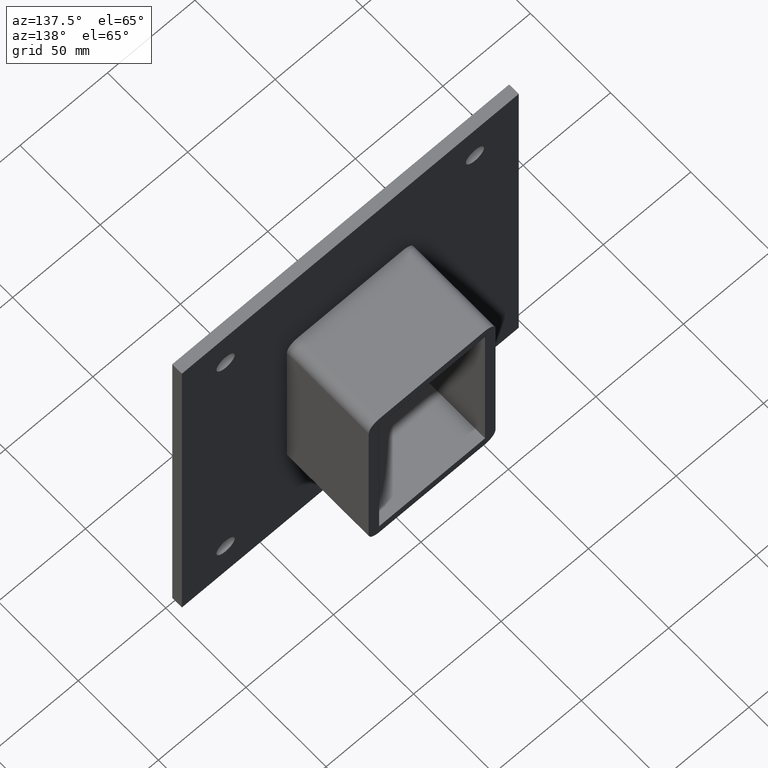
[diagram: clean part render]
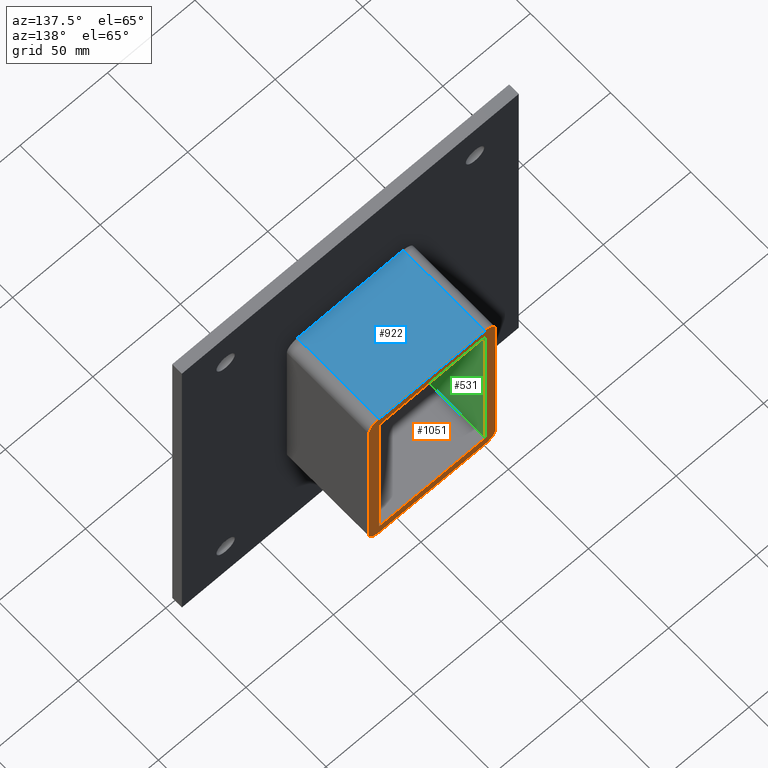
[diagram: same view with three faces highlighted in distinct colors, each labeled with its STEP entity id]
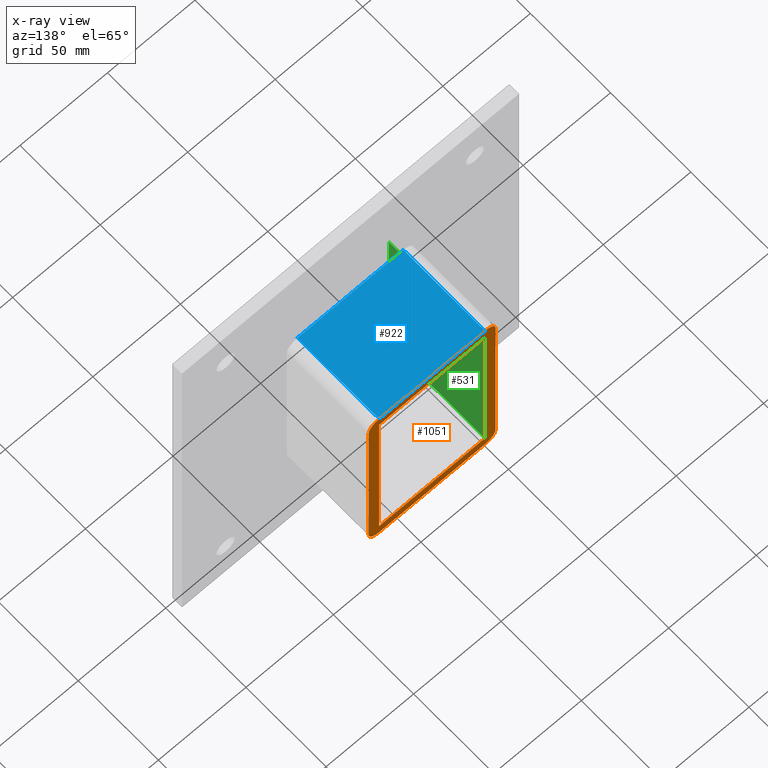
[diagram: x-ray of the same camera — body ghosted, the three highlighted faces saturated]
A machine part, auxiliary view with three faces highlighted in distinct colors.
The next image is the same camera in x-ray (body ghosted, the three faces saturated) — at least one of them is partly hidden behind the body in this view.
Their STEP definitions:

[orange] entity #1051 — the highlighted planar face has unit normal (0, 1, 0).
#499=CARTESIAN_POINT('',(-30.249999999999986,57.0,-50.500000000000043));
#500=VERTEX_POINT('',#499);
#507=CARTESIAN_POINT('',(-30.249999999999986,57.0,50.500000000000007));
#508=VERTEX_POINT('',#507);
#509=CARTESIAN_POINT('',(-30.249999999999986,57.0,50.500000000000007));
#510=DIRECTION('',(0.0,0.0,-1.0));
#511=VECTOR('',#510,101.00000000000006);
#512=LINE('',#509,#511);
#513=EDGE_CURVE('',#508,#500,#512,.T.);
#570=CARTESIAN_POINT('',(30.250000000000004,57.0,-56.500000000000057));
#571=VERTEX_POINT('',#570);
#578=CARTESIAN_POINT('',(36.25,57.0,-50.500000000000057));
#579=VERTEX_POINT('',#578);
#580=CARTESIAN_POINT('',(30.250000000000004,57.0,-50.500000000000057));
#581=DIRECTION('',(0.0,-1.0,0.0));
#582=DIRECTION('',(0.707106781186547,0.0,-0.707106781186547));
#583=AXIS2_PLACEMENT_3D('',#580,#581,#582);
#584=CIRCLE('',#583,6.0);
#585=EDGE_CURVE('',#571,#579,#584,.T.);
#626=CARTESIAN_POINT('',(-30.250000000000004,57.0,-56.500000000000057));
#627=VERTEX_POINT('',#626);
#634=CARTESIAN_POINT('',(30.250000000000004,57.0,-56.500000000000057));
#635=DIRECTION('',(-1.0,0.0,0.0));
#636=VECTOR('',#635,60.5);
#637=LINE('',#634,#636);
#638=EDGE_CURVE('',#571,#627,#637,.T.);
#699=CARTESIAN_POINT('',(-36.25,57.0,-50.500000000000057));
#700=VERTEX_POINT('',#699);
#707=CARTESIAN_POINT('',(-30.250000000000004,57.0,-50.500000000000057));
#708=DIRECTION('',(0.0,-1.0,0.0));
#709=DIRECTION('',(-0.707106781186547,0.0,-0.707106781186547));
#710=AXIS2_PLACEMENT_3D('',#707,#708,#709);
#711=CIRCLE('',#710,6.0);
#712=EDGE_CURVE('',#700,#627,#711,.T.);
#773=CARTESIAN_POINT('',(-36.25,57.0,50.500000000000057));
#774=VERTEX_POINT('',#773);
#781=CARTESIAN_POINT('',(-36.25,57.0,-50.500000000000057));
#782=DIRECTION('',(0.0,0.0,1.0));
#783=VECTOR('',#782,101.00000000000011);
#784=LINE('',#781,#783);
#785=EDGE_CURVE('',#700,#774,#784,.T.);
#880=CARTESIAN_POINT('',(-30.250000000000004,57.0,56.500000000000057));
#881=VERTEX_POINT('',#880);
#888=CARTESIAN_POINT('',(-30.250000000000004,57.0,50.500000000000057));
#889=DIRECTION('',(0.0,-1.0,0.0));
#890=DIRECTION('',(-0.707106781186547,0.0,0.707106781186547));
#891=AXIS2_PLACEMENT_3D('',#888,#889,#890);
#892=CIRCLE('',#891,6.0);
#893=EDGE_CURVE('',#881,#774,#892,.T.);
#905=CARTESIAN_POINT('',(30.250000000000004,57.0,56.500000000000057));
#906=VERTEX_POINT('',#905);
#913=CARTESIAN_POINT('',(-30.250000000000004,57.0,56.500000000000057));
#914=DIRECTION('',(1.0,0.0,0.0));
#915=VECTOR('',#914,60.5);
#916=LINE('',#913,#915);
#917=EDGE_CURVE('',#881,#906,#916,.T.);
#929=CARTESIAN_POINT('',(36.25,57.0,50.500000000000057));
#930=VERTEX_POINT('',#929);
#937=CARTESIAN_POINT('',(30.250000000000004,57.0,50.500000000000057));
#938=DIRECTION('',(0.0,-1.0,0.0));
#939=DIRECTION('',(0.707106781186547,0.0,0.707106781186547));
#940=AXIS2_PLACEMENT_3D('',#937,#938,#939);
#941=CIRCLE('',#940,6.0);
#942=EDGE_CURVE('',#930,#906,#941,.T.);
#955=CARTESIAN_POINT('',(36.25,57.0,50.500000000000057));
#956=DIRECTION('',(0.0,0.0,-1.0));
#957=VECTOR('',#956,101.00000000000011);
#958=LINE('',#955,#957);
#959=EDGE_CURVE('',#930,#579,#958,.T.);
#970=CARTESIAN_POINT('',(30.249999999999986,57.0,-50.500000000000043));
#971=VERTEX_POINT('',#970);
#979=CARTESIAN_POINT('',(30.249999999999986,57.0,50.500000000000007));
#980=VERTEX_POINT('',#979);
#987=CARTESIAN_POINT('',(30.249999999999986,57.0,-50.500000000000043));
#988=DIRECTION('',(0.0,0.0,1.0));
#989=VECTOR('',#988,101.00000000000006);
#990=LINE('',#987,#989);
#991=EDGE_CURVE('',#971,#980,#990,.T.);
#1002=CARTESIAN_POINT('',(30.249999999999986,57.0,50.499999999999972));
#1003=DIRECTION('',(-1.0,0.0,0.0));
#1004=VECTOR('',#1003,60.499999999999972);
#1005=LINE('',#1002,#1004);
#1006=EDGE_CURVE('',#980,#508,#1005,.T.);
#1021=CARTESIAN_POINT('',(-30.249999999999986,57.0,-50.500000000000043));
#1022=DIRECTION('',(1.0,0.0,0.0));
#1023=VECTOR('',#1022,60.499999999999972);
#1024=LINE('',#1021,#1023);
#1025=EDGE_CURVE('',#500,#971,#1024,.T.);
#1030=CARTESIAN_POINT('',(0.0,57.0,0.0));
#1031=DIRECTION('',(0.0,1.0,0.0));
#1032=DIRECTION('',(0.0,0.0,1.0));
#1033=AXIS2_PLACEMENT_3D('',#1030,#1031,#1032);
#1034=PLANE('',#1033);
#1035=ORIENTED_EDGE('',*,*,#712,.F.);
#1036=ORIENTED_EDGE('',*,*,#785,.T.);
#1037=ORIENTED_EDGE('',*,*,#893,.F.);
#1038=ORIENTED_EDGE('',*,*,#917,.T.);
#1039=ORIENTED_EDGE('',*,*,#942,.F.);
#1040=ORIENTED_EDGE('',*,*,#959,.T.);
#1041=ORIENTED_EDGE('',*,*,#585,.F.);
#1042=ORIENTED_EDGE('',*,*,#638,.T.);
#1043=EDGE_LOOP('',(#1035,#1036,#1037,#1038,#1039,#1040,#1041,#1042));
#1044=FACE_OUTER_BOUND('',#1043,.T.);
#1045=ORIENTED_EDGE('',*,*,#991,.T.);
#1046=ORIENTED_EDGE('',*,*,#1006,.T.);
#1047=ORIENTED_EDGE('',*,*,#513,.T.);
#1048=ORIENTED_EDGE('',*,*,#1025,.T.);
#1049=EDGE_LOOP('',(#1045,#1046,#1047,#1048));
#1050=FACE_BOUND('',#1049,.T.);
#1051=ADVANCED_FACE('',(#1044,#1050),#1034,.T.);

[blue] entity #922 — the highlighted planar face has unit normal (0, 0, 1).
#233=CARTESIAN_POINT('',(-30.250000000000004,6.000000000000001,56.500000000000057));
#234=VERTEX_POINT('',#233);
#284=CARTESIAN_POINT('',(30.250000000000004,6.000000000000001,56.500000000000057));
#285=VERTEX_POINT('',#284);
#293=CARTESIAN_POINT('',(-30.250000000000004,6.000000000000001,56.500000000000057));
#294=DIRECTION('',(1.0,0.0,0.0));
#295=VECTOR('',#294,60.500000000000014);
#296=LINE('',#293,#295);
#297=EDGE_CURVE('',#234,#285,#296,.T.);
#880=CARTESIAN_POINT('',(-30.250000000000004,57.0,56.500000000000057));
#881=VERTEX_POINT('',#880);
#882=CARTESIAN_POINT('',(-30.250000000000004,6.000000000000001,56.500000000000057));
#883=DIRECTION('',(0.0,1.0,0.0));
#884=VECTOR('',#883,51.0);
#885=LINE('',#882,#884);
#886=EDGE_CURVE('',#234,#881,#885,.T.);
#899=CARTESIAN_POINT('',(-36.25,0.0,56.500000000000057));
#900=DIRECTION('',(0.0,0.0,1.0));
#901=DIRECTION('',(1.0,0.0,0.0));
#902=AXIS2_PLACEMENT_3D('',#899,#900,#901);
#903=PLANE('',#902);
#904=ORIENTED_EDGE('',*,*,#297,.T.);
#905=CARTESIAN_POINT('',(30.250000000000004,57.0,56.500000000000057));
#906=VERTEX_POINT('',#905);
#907=CARTESIAN_POINT('',(30.250000000000004,57.0,56.500000000000057));
#908=DIRECTION('',(0.0,-1.0,0.0));
#909=VECTOR('',#908,51.0);
#910=LINE('',#907,#909);
#911=EDGE_CURVE('',#906,#285,#910,.T.);
#912=ORIENTED_EDGE('',*,*,#911,.F.);
#913=CARTESIAN_POINT('',(-30.250000000000004,57.0,56.500000000000057));
#914=DIRECTION('',(1.0,0.0,0.0));
#915=VECTOR('',#914,60.5);
#916=LINE('',#913,#915);
#917=EDGE_CURVE('',#881,#906,#916,.T.);
#918=ORIENTED_EDGE('',*,*,#917,.F.);
#919=ORIENTED_EDGE('',*,*,#886,.F.);
#920=EDGE_LOOP('',(#904,#912,#918,#919));
#921=FACE_OUTER_BOUND('',#920,.T.);
#922=ADVANCED_FACE('',(#921),#903,.T.);

[green] entity #531 — the highlighted planar face has unit normal (-1, 0, 0).
#492=CARTESIAN_POINT('',(-30.249999999999986,0.0,-50.500000000000043));
#493=DIRECTION('',(-1.0,0.0,0.0));
#494=DIRECTION('',(0.0,0.0,1.0));
#495=AXIS2_PLACEMENT_3D('',#492,#493,#494);
#496=PLANE('',#495);
#497=CARTESIAN_POINT('',(-30.249999999999986,-3.0,-50.500000000000043));
#498=VERTEX_POINT('',#497);
#499=CARTESIAN_POINT('',(-30.249999999999986,57.0,-50.500000000000043));
#500=VERTEX_POINT('',#499);
#501=CARTESIAN_POINT('',(-30.249999999999986,-3.0,-50.500000000000043));
#502=DIRECTION('',(0.0,1.0,0.0));
#503=VECTOR('',#502,60.0);
#504=LINE('',#501,#503);
#505=EDGE_CURVE('',#498,#500,#504,.T.);
#506=ORIENTED_EDGE('',*,*,#505,.T.);
#507=CARTESIAN_POINT('',(-30.249999999999986,57.0,50.500000000000007));
#508=VERTEX_POINT('',#507);
#509=CARTESIAN_POINT('',(-30.249999999999986,57.0,50.500000000000007));
#510=DIRECTION('',(0.0,0.0,-1.0));
#511=VECTOR('',#510,101.00000000000006);
#512=LINE('',#509,#511);
#513=EDGE_CURVE('',#508,#500,#512,.T.);
#514=ORIENTED_EDGE('',*,*,#513,.F.);
#515=CARTESIAN_POINT('',(-30.249999999999986,-3.0,50.500000000000007));
#516=VERTEX_POINT('',#515);
#517=CARTESIAN_POINT('',(-30.249999999999986,-3.0,50.500000000000007));
#518=DIRECTION('',(0.0,1.0,0.0));
#519=VECTOR('',#518,60.0);
#520=LINE('',#517,#519);
#521=EDGE_CURVE('',#516,#508,#520,.T.);
#522=ORIENTED_EDGE('',*,*,#521,.F.);
#523=CARTESIAN_POINT('',(-30.249999999999986,-3.0,-50.500000000000043));
#524=DIRECTION('',(0.0,0.0,1.0));
#525=VECTOR('',#524,101.00000000000006);
#526=LINE('',#523,#525);
#527=EDGE_CURVE('',#498,#516,#526,.T.);
#528=ORIENTED_EDGE('',*,*,#527,.F.);
#529=EDGE_LOOP('',(#506,#514,#522,#528));
#530=FACE_OUTER_BOUND('',#529,.T.);
#531=ADVANCED_FACE('',(#530),#496,.F.);